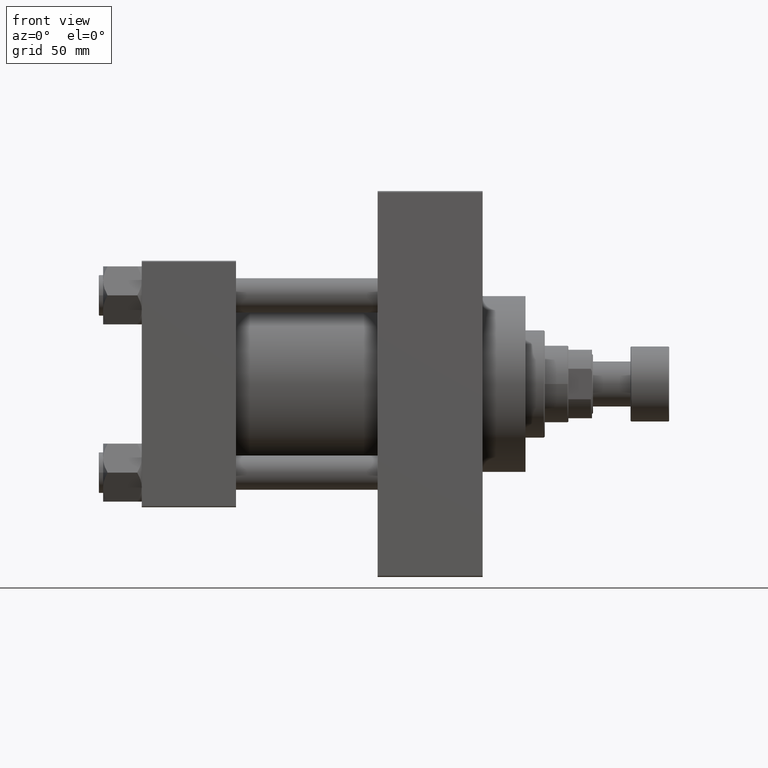
[diagram: clean part render]
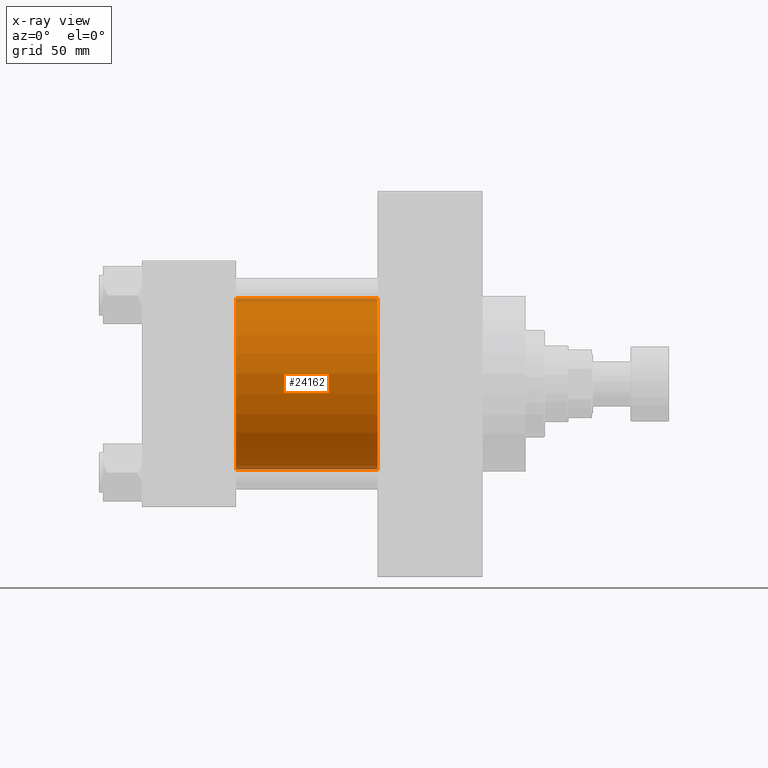
[diagram: x-ray — body ghosted, one internal face saturated and labeled with its STEP entity id]
A machine part, front view, then the same camera in x-ray: the body is ghosted and one INTERNAL B-rep face — a face not visible from any outside direction — is saturated and labeled: STEP entity #24162.
In plain terms, the highlighted cylindrical surface (partial cylindrical patch) has radius 40 mm, axis along (-1, -0, -0).
Its self-contained STEP definition (entity closure, byte-faithful):
#1457 = DIRECTION ( 'NONE',  ( -1.000000000000000000, -0.000000000000000000, -0.000000000000000000 ) ) ;
#5190 = CARTESIAN_POINT ( 'NONE',  ( 110.0000000000000000, -2.602085213965210642E-15, 40.00000000000000000 ) ) ;
#7011 = DIRECTION ( 'NONE',  ( 0.000000000000000000, 0.000000000000000000, 1.000000000000000000 ) ) ;
#7914 = DIRECTION ( 'NONE',  ( 1.000000000000000000, 0.000000000000000000, 0.000000000000000000 ) ) ;
#8344 = LINE ( 'NONE', #5190, #34410 ) ;
#8448 = VERTEX_POINT ( 'NONE', #26100 ) ;
#10828 = AXIS2_PLACEMENT_3D ( 'NONE', #44455, #7914, #22045 ) ;
#11427 = VECTOR ( 'NONE', #1457, 1000.000000000000000 ) ;
#15480 = VERTEX_POINT ( 'NONE', #19906 ) ;
#18691 = DIRECTION ( 'NONE',  ( -1.000000000000000000, -0.000000000000000000, -0.000000000000000000 ) ) ;
#19906 = CARTESIAN_POINT ( 'NONE',  ( 44.00000000000000000, 2.296501982624201990E-15, -40.00000000000000000 ) ) ;
#21263 = EDGE_LOOP ( 'NONE', ( #29165, #41864, #24876, #37577 ) ) ;
#22045 = DIRECTION ( 'NONE',  ( 0.000000000000000000, 0.000000000000000000, -1.000000000000000000 ) ) ;
#23430 = DIRECTION ( 'NONE',  ( -1.000000000000000000, -0.000000000000000000, -0.000000000000000000 ) ) ;
#23923 = VERTEX_POINT ( 'NONE', #28229 ) ;
#24043 = CIRCLE ( 'NONE', #10828, 40.00000000000000000 ) ;
#24162 = ADVANCED_FACE ( 'NONE', ( #44024 ), #25521, .F. ) ;
#24876 = ORIENTED_EDGE ( 'NONE', *, *, #43632, .F. ) ;
#24948 = EDGE_CURVE ( 'NONE', #26000, #23923, #8344, .T. ) ;
#25521 = CYLINDRICAL_SURFACE ( 'NONE', #46077, 40.00000000000000000 ) ;
#26000 = VERTEX_POINT ( 'NONE', #32664 ) ;
#26100 = CARTESIAN_POINT ( 'NONE',  ( 110.0000000000000000, 2.296501982624201990E-15, -40.00000000000000000 ) ) ;
#27557 = DIRECTION ( 'NONE',  ( 0.000000000000000000, 0.000000000000000000, -1.000000000000000000 ) ) ;
#28229 = CARTESIAN_POINT ( 'NONE',  ( 44.00000000000000000, -2.602085213965210642E-15, 40.00000000000000000 ) ) ;
#29165 = ORIENTED_EDGE ( 'NONE', *, *, #32011, .T. ) ;
#31862 = LINE ( 'NONE', #34807, #11427 ) ;
#32011 = EDGE_CURVE ( 'NONE', #26000, #8448, #42444, .T. ) ;
#32664 = CARTESIAN_POINT ( 'NONE',  ( 110.0000000000000000, -2.602085213965210642E-15, 40.00000000000000000 ) ) ;
#34410 = VECTOR ( 'NONE', #23430, 1000.000000000000000 ) ;
#34807 = CARTESIAN_POINT ( 'NONE',  ( 110.0000000000000000, 2.296501982624201990E-15, -40.00000000000000000 ) ) ;
#35552 = EDGE_CURVE ( 'NONE', #8448, #15480, #31862, .T. ) ;
#37546 = CARTESIAN_POINT ( 'NONE',  ( 110.0000000000000000, -2.602085213965210642E-15, 0.000000000000000000 ) ) ;
#37577 = ORIENTED_EDGE ( 'NONE', *, *, #24948, .F. ) ;
#37796 = DIRECTION ( 'NONE',  ( 1.000000000000000000, 0.000000000000000000, 0.000000000000000000 ) ) ;
#39324 = AXIS2_PLACEMENT_3D ( 'NONE', #37546, #37796, #27557 ) ;
#40374 = CARTESIAN_POINT ( 'NONE',  ( 110.0000000000000000, -2.602085213965210642E-15, 0.000000000000000000 ) ) ;
#41864 = ORIENTED_EDGE ( 'NONE', *, *, #35552, .T. ) ;
#42444 = CIRCLE ( 'NONE', #39324, 40.00000000000000000 ) ;
#43632 = EDGE_CURVE ( 'NONE', #23923, #15480, #24043, .T. ) ;
#44024 = FACE_OUTER_BOUND ( 'NONE', #21263, .T. ) ;
#44455 = CARTESIAN_POINT ( 'NONE',  ( 44.00000000000000000, -2.602085213965210642E-15, 0.000000000000000000 ) ) ;
#46077 = AXIS2_PLACEMENT_3D ( 'NONE', #40374, #18691, #7011 ) ;